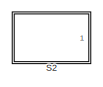
[diagram: root canvas - part 1/4, top left region]
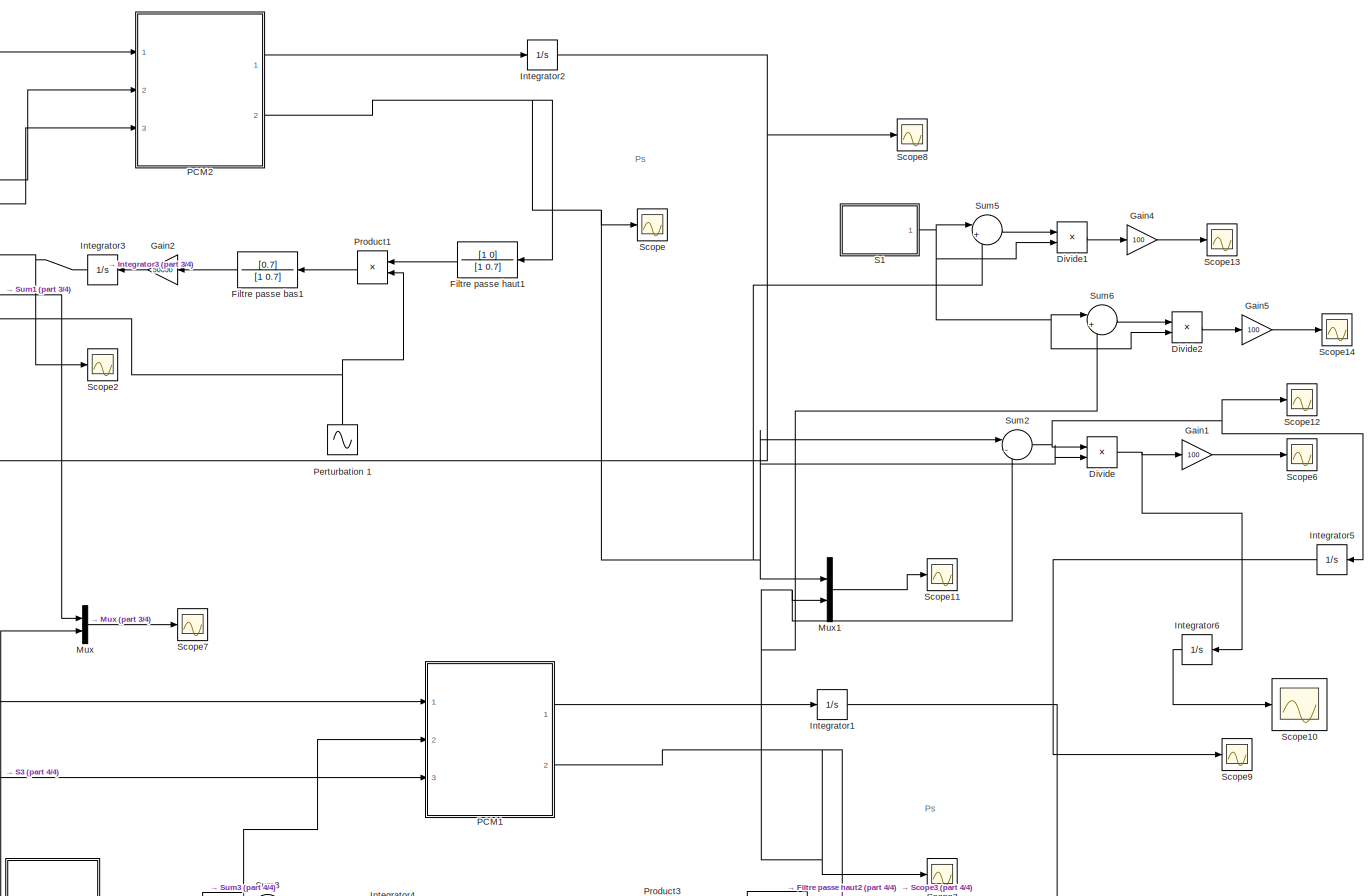
[diagram: root canvas - part 2/4, full width, middle band]
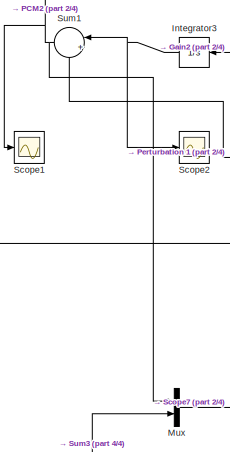
[diagram: root canvas - part 3/4, middle left region]
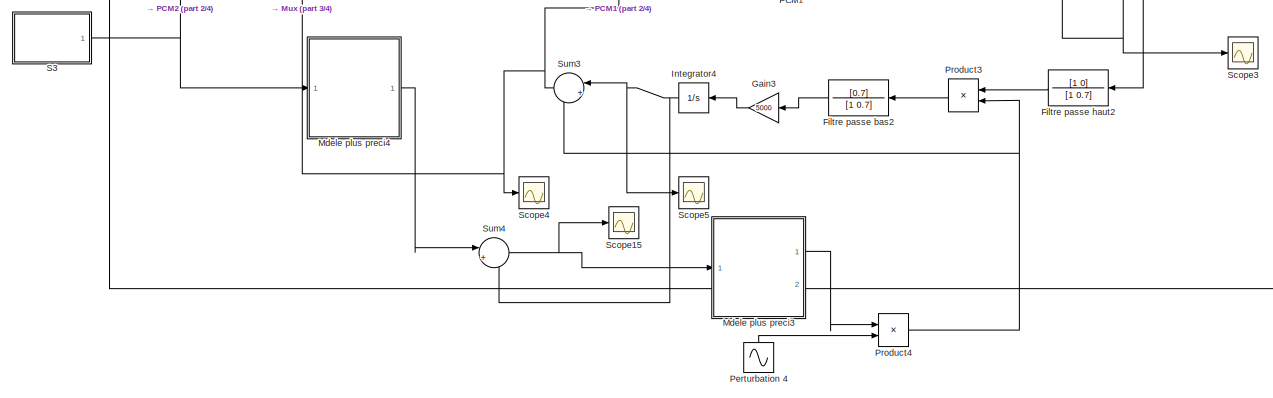
[diagram: root canvas - part 4/4, bottom center region]
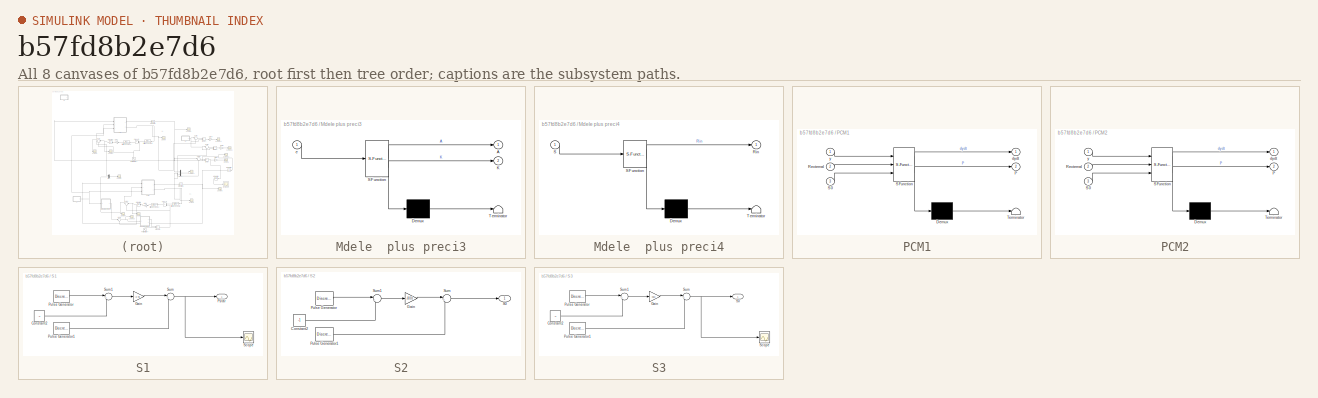
[diagram: thumbnail index - all 8 canvases of the model, root first then tree order]
MODEL slx_b57fd8b2e7d6
KIND model
CONFIG AbsTol = 1e-12
CONFIG FixedStep = 0.0001
CONFIG MaxStep = auto
CONFIG MinStep = auto
CONFIG RelTol = 1e-12
CONFIG SampleTimeConstraint = Unconstrained
CONFIG Solver = ode15s
CONFIG SolverMode = Auto
CONFIG SolverName = ode15s
CONFIG StartTime = 0.0
CONFIG StopTime = tsim
BLOCK [Product] Divide
  InputSameDT = off
  Inputs = */
  OutDataTypeStr = Inherit: Inherit via internal rule
  Ports = [2, 1]
  RndMeth = Floor
  SaturateOnIntegerOverflow = off
BLOCK [Product] Divide1
  InputSameDT = off
  Inputs = */
  OutDataTypeStr = Inherit: Inherit via internal rule
  Ports = [2, 1]
  RndMeth = Floor
  SaturateOnIntegerOverflow = off
BLOCK [Product] Divide2
  InputSameDT = off
  Inputs = */
  OutDataTypeStr = Inherit: Inherit via internal rule
  Ports = [2, 1]
  RndMeth = Floor
  SaturateOnIntegerOverflow = off
BLOCK [TransferFcn] Filtre passe bas1
  Denominator = [1 0.7]
  Numerator = [0.7]
BLOCK [TransferFcn] Filtre passe bas2
  Denominator = [1 0.7]
  Numerator = [0.7]
BLOCK [TransferFcn] Filtre passe haut1
  Denominator = [1 0.7]
  Numerator = [1 0]
BLOCK [TransferFcn] Filtre passe haut2
  Denominator = [1 0.7]
  Numerator = [1 0]
BLOCK [Gain] Gain1
  Gain = 100
  OutDataTypeStr = Inherit: Inherit via internal rule
  ParamDataTypeStr = Inherit: Inherit via internal rule
  SaturateOnIntegerOverflow = off
BLOCK [Gain] Gain2
  Gain = 50000
  OutDataTypeStr = Inherit: Inherit via internal rule
  ParamDataTypeStr = Inherit: Inherit via internal rule
  SaturateOnIntegerOverflow = off
BLOCK [Gain] Gain3
  Gain = 5000
  OutDataTypeStr = Inherit: Inherit via internal rule
  ParamDataTypeStr = Inherit: Inherit via internal rule
  SaturateOnIntegerOverflow = off
BLOCK [Gain] Gain4
  Gain = 100
  OutDataTypeStr = Inherit: Inherit via internal rule
  ParamDataTypeStr = Inherit: Inherit via internal rule
  SaturateOnIntegerOverflow = off
BLOCK [Gain] Gain5
  Gain = 100
  OutDataTypeStr = Inherit: Inherit via internal rule
  ParamDataTypeStr = Inherit: Inherit via internal rule
  SaturateOnIntegerOverflow = off
BLOCK [Integrator] Integrator1
  InitialCondition = [5.726117682433310 0.030299840936202]
  Ports = [1, 1]
BLOCK [Integrator] Integrator2
  InitialCondition = [5.726117682433310 0.030299840936202]
  Ports = [1, 1]
BLOCK [Integrator] Integrator3
  InitialCondition = 157
  Ports = [1, 1]
BLOCK [Integrator] Integrator4
  InitialCondition = 157
  Ports = [1, 1]
BLOCK [Integrator] Integrator5
  Ports = [1, 1]
BLOCK [Integrator] Integrator6
  Ports = [1, 1]
BLOCK [SubSystem] Mdele  plus preci3
  ErrorFcn = Stateflow.Translate.translate
  PermitHierarchicalResolution = ExplicitOnly
  Ports = [1, 2]
  RequestExecContextInheritance = off
  SFBlockType = MATLAB Function
  TreatAsAtomicUnit = on
  Variant = off
BLOCK [Demux] Mdele  plus preci3/ Demux 
  Outputs = 1
  Ports = [1, 1]
BLOCK [S-Function] Mdele  plus preci3/ SFunction 
  EnableBusSupport = on
  FunctionName = sf_sfun
  PortCounts = [1 3]
  Ports = [1, 3]
  SFunctionDeploymentMode = off
  Tag = Stateflow S-Function PCM 3
BLOCK [Terminator] Mdele  plus preci3/ Terminator 
BLOCK [Outport] Mdele  plus preci3/A
  IconDisplay = Port number
BLOCK [Outport] Mdele  plus preci3/K
  IconDisplay = Port number
  Port = 2
BLOCK [Inport] Mdele  plus preci3/e
  IconDisplay = Port number
BLOCK [SubSystem] Mdele  plus preci4
  ErrorFcn = Stateflow.Translate.translate
  PermitHierarchicalResolution = ExplicitOnly
  Ports = [1, 1]
  RequestExecContextInheritance = off
  SFBlockType = MATLAB Function
  TreatAsAtomicUnit = on
  Variant = off
BLOCK [Demux] Mdele  plus preci4/ Demux 
  Outputs = 1
  Ports = [1, 1]
BLOCK [S-Function] Mdele  plus preci4/ SFunction 
  EnableBusSupport = on
  FunctionName = sf_sfun
  PortCounts = [1 2]
  Ports = [1, 2]
  SFunctionDeploymentMode = off
  Tag = Stateflow S-Function PCM 4
BLOCK [Terminator] Mdele  plus preci4/ Terminator 
BLOCK [Outport] Mdele  plus preci4/Rin
  IconDisplay = Port number
BLOCK [Inport] Mdele  plus preci4/S
  IconDisplay = Port number
BLOCK [Mux] Mux
  DisplayOption = bar
  Inputs = 2
  Ports = [2, 1]
BLOCK [Mux] Mux1
  DisplayOption = bar
  Inputs = 2
  Ports = [2, 1]
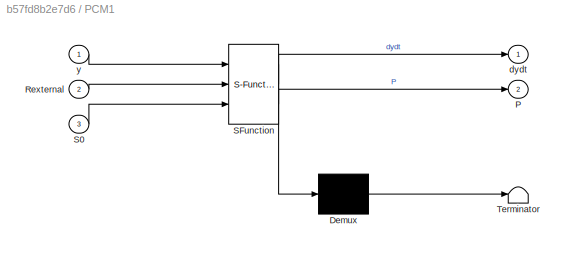
BLOCK [SubSystem] PCM1
  ErrorFcn = Stateflow.Translate.translate
  PermitHierarchicalResolution = ExplicitOnly
  Ports = [3, 2]
  RequestExecContextInheritance = off
  SFBlockType = MATLAB Function
  TreatAsAtomicUnit = on
  Variant = off
BLOCK [Demux] PCM1/ Demux 
  Outputs = 1
  Ports = [1, 1]
BLOCK [S-Function] PCM1/ SFunction 
  EnableBusSupport = on
  FunctionName = sf_sfun
  PortCounts = [3 3]
  Ports = [3, 3]
  SFunctionDeploymentMode = off
  Tag = Stateflow S-Function PCM 6
BLOCK [Terminator] PCM1/ Terminator 
BLOCK [Outport] PCM1/P
  IconDisplay = Port number
  Port = 2
BLOCK [Inport] PCM1/Rexternal
  IconDisplay = Port number
  Port = 2
BLOCK [Inport] PCM1/S0
  IconDisplay = Port number
  Port = 3
BLOCK [Outport] PCM1/dydt
  IconDisplay = Port number
BLOCK [Inport] PCM1/y
  IconDisplay = Port number
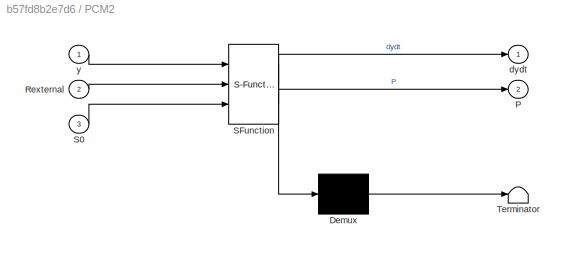
BLOCK [SubSystem] PCM2
  ErrorFcn = Stateflow.Translate.translate
  PermitHierarchicalResolution = ExplicitOnly
  Ports = [3, 2]
  RequestExecContextInheritance = off
  SFBlockType = MATLAB Function
  TreatAsAtomicUnit = on
  Variant = off
BLOCK [Demux] PCM2/ Demux 
  Outputs = 1
  Ports = [1, 1]
BLOCK [S-Function] PCM2/ SFunction 
  EnableBusSupport = on
  FunctionName = sf_sfun
  PortCounts = [3 3]
  Ports = [3, 3]
  SFunctionDeploymentMode = off
  Tag = Stateflow S-Function PCM 5
BLOCK [Terminator] PCM2/ Terminator 
BLOCK [Outport] PCM2/P
  IconDisplay = Port number
  Port = 2
BLOCK [Inport] PCM2/Rexternal
  IconDisplay = Port number
  Port = 2
BLOCK [Inport] PCM2/S0
  IconDisplay = Port number
  Port = 3
BLOCK [Outport] PCM2/dydt
  IconDisplay = Port number
BLOCK [Inport] PCM2/y
  IconDisplay = Port number
BLOCK [Sin] Perturbation 1
  Amplitude = 2
  Frequency = 3.8
  Ports = [0, 1]
  SampleTime = 0
BLOCK [Sin] Perturbation 4
  Frequency = 3.8
  Ports = [0, 1]
  SampleTime = 0
BLOCK [Product] Product1
  InputSameDT = off
  OutDataTypeStr = Inherit: Inherit via internal rule
  Ports = [2, 1]
  SaturateOnIntegerOverflow = off
BLOCK [Product] Product3
  InputSameDT = off
  OutDataTypeStr = Inherit: Inherit via internal rule
  Ports = [2, 1]
  SaturateOnIntegerOverflow = off
BLOCK [Product] Product4
  InputSameDT = off
  OutDataTypeStr = Inherit: Inherit via internal rule
  Ports = [2, 1]
  SaturateOnIntegerOverflow = off
BLOCK [SubSystem] S1
  Ports = [0, 1]
  RequestExecContextInheritance = off
  Variant = off
BLOCK [Constant] S1/Constant2
  Value = -1
BLOCK [Gain] S1/Gain
  Gain = -2.48
  OutDataTypeStr = Inherit: Inherit via internal rule
  ParamDataTypeStr = Inherit: Inherit via internal rule
  SaturateOnIntegerOverflow = off
BLOCK [Outport] S1/Pstar
  IconDisplay = Port number
BLOCK [DiscretePulseGenerator] S1/Pulse Generator
  Period = Per2
  Ports = [0, 1]
  PulseType = Time based
  PulseWidth = 50
BLOCK [DiscretePulseGenerator] S1/Pulse Generator1
  Amplitude = 1.47
  Period = Per2
  Ports = [0, 1]
  PulseType = Time based
  PulseWidth = 50
BLOCK [Scope] S1/Scope
  Ports = [1]
  ScopeSpecificationString = Simulink.scopes.TimeScopeBlockCfg('CurrentConfiguration', extmgr.ConfigurationSet(extmgr.Configuration('Core','General UI',true),extmgr.Configuration('Core','Source UI',true),extmgr.Configuration('Sources','WiredSimulink',true,'DataLoggingVariableName','ScopeData4','DataLoggingLimitDataPoints',true,'DataLoggingSaveFormat','Array','DataLoggingDecimation','1','DataLoggingDecimateData',true),extmgr.C...<+1701ch>
BLOCK [Sum] S1/Sum
  IconShape = round
  InputSameDT = off
  Inputs = |++
  OutDataTypeStr = Inherit: Inherit via internal rule
  Ports = [2, 1]
  SaturateOnIntegerOverflow = off
BLOCK [Sum] S1/Sum1
  IconShape = round
  InputSameDT = off
  Inputs = |++
  OutDataTypeStr = Inherit: Inherit via internal rule
  Ports = [2, 1]
  SaturateOnIntegerOverflow = off
BLOCK [SubSystem] S2
  Ports = [0, 1]
  RequestExecContextInheritance = off
  Variant = off
BLOCK [Constant] S2/Constant2
  Value = -1
BLOCK [Gain] S2/Gain
  Gain = -800
  OutDataTypeStr = Inherit: Inherit via internal rule
  ParamDataTypeStr = Inherit: Inherit via internal rule
  SaturateOnIntegerOverflow = off
BLOCK [DiscretePulseGenerator] S2/Pulse Generator
  Period = 7
  Ports = [0, 1]
  PulseType = Time based
  PulseWidth = 50
BLOCK [DiscretePulseGenerator] S2/Pulse Generator1
  Amplitude = 300
  Period = 7
  Ports = [0, 1]
  PulseType = Time based
  PulseWidth = 50
BLOCK [Outport] S2/S0
  IconDisplay = Port number
BLOCK [Sum] S2/Sum
  IconShape = round
  InputSameDT = off
  Inputs = |++
  OutDataTypeStr = Inherit: Inherit via internal rule
  Ports = [2, 1]
  SaturateOnIntegerOverflow = off
BLOCK [Sum] S2/Sum1
  IconShape = round
  InputSameDT = off
  Inputs = |++
  OutDataTypeStr = Inherit: Inherit via internal rule
  Ports = [2, 1]
  SaturateOnIntegerOverflow = off
BLOCK [SubSystem] S3
  Ports = [0, 1]
  RequestExecContextInheritance = off
  Variant = off
BLOCK [Constant] S3/Constant2
  Value = -1
BLOCK [Gain] S3/Gain
  Gain = -850
  OutDataTypeStr = Inherit: Inherit via internal rule
  ParamDataTypeStr = Inherit: Inherit via internal rule
  SaturateOnIntegerOverflow = off
BLOCK [DiscretePulseGenerator] S3/Pulse Generator
  Period = Per2
  Ports = [0, 1]
  PulseType = Time based
  PulseWidth = 50
BLOCK [DiscretePulseGenerator] S3/Pulse Generator1
  Amplitude = 350
  Period = Per2
  Ports = [0, 1]
  PulseType = Time based
  PulseWidth = 50
BLOCK [Outport] S3/S0
  IconDisplay = Port number
BLOCK [Scope] S3/Scope
  Ports = [1]
  ScopeSpecificationString = Simulink.scopes.TimeScopeBlockCfg('CurrentConfiguration', extmgr.ConfigurationSet(extmgr.Configuration('Core','General UI',true),extmgr.Configuration('Core','Source UI',true),extmgr.Configuration('Sources','WiredSimulink',true,'DataLoggingVariableName','ScopeData4','DataLoggingLimitDataPoints',true,'DataLoggingSaveFormat','Array','DataLoggingDecimation','1','DataLoggingDecimateData',true),extmgr.C...<+1701ch>
BLOCK [Sum] S3/Sum
  IconShape = round
  InputSameDT = off
  Inputs = |++
  OutDataTypeStr = Inherit: Inherit via internal rule
  Ports = [2, 1]
  SaturateOnIntegerOverflow = off
BLOCK [Sum] S3/Sum1
  IconShape = round
  InputSameDT = off
  Inputs = |++
  OutDataTypeStr = Inherit: Inherit via internal rule
  Ports = [2, 1]
  SaturateOnIntegerOverflow = off
BLOCK [Scope] Scope
  Ports = [1]
  ScopeSpecificationString = Simulink.scopes.TimeScopeBlockCfg('CurrentConfiguration', extmgr.ConfigurationSet(extmgr.Configuration('Core','General UI',true),extmgr.Configuration('Core','Source UI',true),extmgr.Configuration('Sources','WiredSimulink',true,'DataLogging',true,'DataLoggingSaveFormat','Array','DataLoggingDecimation','1','DataLoggingDecimateData',true),extmgr.Configuration('Visuals','Time Domain',true,'SerializedD...<+1655ch>
BLOCK [Scope] Scope1
  Ports = [1]
  ScopeSpecificationString = C++SS(StrPVP('Location','[11, 60, 1291, 995]'),StrPVP('Open','off'),MxPVP('AxesTitles',24,'struct(''axes1'',''%<SignalLabel>'')'),MxPVP('ScopeGraphics',28,'struct(''FigureColor'',''[0.501960784313725 0.501960784313725 0.501960784313725]'',''AxesColor'',''[0 0 0]'',''AxesTickColor'',''[1 1 1]'',''LineColors'',''[1 1 0;1 0 1;0 1 1;1 0 0;0 1 0;0 0 1]'',''LineStyles'',''-|-|-|-|-|-'',''LineWidths'',''...<+346ch>
BLOCK [Scope] Scope10
  Ports = [1]
  ScopeSpecificationString = Simulink.scopes.TimeScopeBlockCfg('CurrentConfiguration', extmgr.ConfigurationSet(extmgr.Configuration('Core','General UI',true),extmgr.Configuration('Core','Source UI',true),extmgr.Configuration('Sources','WiredSimulink',true,'DataLogging',true,'DataLoggingVariableName','PourcInc','DataLoggingSaveFormat','Array','DataLoggingDecimation','1','DataLoggingDecimateData',true),extmgr.Configuration('Vis...<+1718ch>
BLOCK [Scope] Scope11
  Ports = [1]
  ScopeSpecificationString = Simulink.scopes.TimeScopeBlockCfg('CurrentConfiguration', extmgr.ConfigurationSet(extmgr.Configuration('Core','General UI',true),extmgr.Configuration('Core','Source UI',true),extmgr.Configuration('Sources','WiredSimulink',true,'DataLogging',true,'DataLoggingVariableName','ScopeData11','DataLoggingSaveFormat','Array','DataLoggingDecimation','1','DataLoggingDecimateData',true),extmgr.Configuration('...<+1778ch>
BLOCK [Scope] Scope12
  Ports = [1]
  ScopeSpecificationString = Simulink.scopes.TimeScopeBlockCfg('CurrentConfiguration', extmgr.ConfigurationSet(extmgr.Configuration('Core','General UI',true),extmgr.Configuration('Core','Source UI',true),extmgr.Configuration('Sources','WiredSimulink',true,'DataLogging',true,'DataLoggingVariableName','ScopeData12','DataLoggingSaveFormat','Array','DataLoggingDecimation','1','DataLoggingDecimateData',true),extmgr.Configuration('...<+1696ch>
BLOCK [Scope] Scope13
  Ports = [1]
  ScopeSpecificationString = Simulink.scopes.TimeScopeBlockCfg('CurrentConfiguration', extmgr.ConfigurationSet(extmgr.Configuration('Core','General UI',true),extmgr.Configuration('Core','Source UI',true),extmgr.Configuration('Sources','WiredSimulink',true,'DataLogging',true,'DataLoggingVariableName','PerteESC','DataLoggingSaveFormat','Array','DataLoggingDecimation','1','DataLoggingDecimateData',true),extmgr.Configuration('Vis...<+1698ch>
BLOCK [Scope] Scope14
  Ports = [1]
  ScopeSpecificationString = Simulink.scopes.TimeScopeBlockCfg('CurrentConfiguration', extmgr.ConfigurationSet(extmgr.Configuration('Core','General UI',true),extmgr.Configuration('Core','Source UI',true),extmgr.Configuration('Sources','WiredSimulink',true,'DataLogging',true,'DataLoggingVariableName','PerteAdapt','DataLoggingSaveFormat','Array','DataLoggingDecimation','1','DataLoggingDecimateData',true),extmgr.Configuration('V...<+1701ch>
BLOCK [Scope] Scope15
  Ports = [1]
  ScopeSpecificationString = C++SS(StrPVP('Location','[11, 62, 1291, 995]'),StrPVP('Open','off'),MxPVP('AxesTitles',24,'struct(''axes1'',''%<SignalLabel>'')'),MxPVP('ScopeGraphics',28,'struct(''FigureColor'',''[0.501960784313725 0.501960784313725 0.501960784313725]'',''AxesColor'',''[0 0 0]'',''AxesTickColor'',''[1 1 1]'',''LineColors'',''[1 1 0;1 0 1;0 1 1;1 0 0;0 1 0;0 0 1]'',''LineStyles'',''-|-|-|-|-|-'',''LineWidths'',''...<+348ch>
BLOCK [Scope] Scope2
  Ports = [1]
  ScopeSpecificationString = C++SS(StrPVP('Location','[11, 60, 1291, 995]'),StrPVP('Open','off'),MxPVP('AxesTitles',24,'struct(''axes1'',''%<SignalLabel>'')'),MxPVP('ScopeGraphics',28,'struct(''FigureColor'',''[0.501960784313725 0.501960784313725 0.501960784313725]'',''AxesColor'',''[0 0 0]'',''AxesTickColor'',''[1 1 1]'',''LineColors'',''[1 1 0;1 0 1;0 1 1;1 0 0;0 1 0;0 0 1]'',''LineStyles'',''-|-|-|-|-|-'',''LineWidths'',''...<+352ch>
BLOCK [Scope] Scope3
  Ports = [1]
  ScopeSpecificationString = Simulink.scopes.TimeScopeBlockCfg('CurrentConfiguration', extmgr.ConfigurationSet(extmgr.Configuration('Core','General UI',true),extmgr.Configuration('Core','Source UI',true),extmgr.Configuration('Sources','WiredSimulink',true,'DataLogging',true,'DataLoggingVariableName','ScopeData3','DataLoggingSaveFormat','Array','DataLoggingDecimation','1','DataLoggingDecimateData',true),extmgr.Configuration('V...<+1688ch>
BLOCK [Scope] Scope4
  Ports = [1]
  ScopeSpecificationString = C++SS(StrPVP('Location','[11, 60, 1291, 995]'),StrPVP('Open','off'),MxPVP('AxesTitles',24,'struct(''axes1'',''%<SignalLabel>'')'),MxPVP('ScopeGraphics',28,'struct(''FigureColor'',''[0.501960784313725 0.501960784313725 0.501960784313725]'',''AxesColor'',''[0 0 0]'',''AxesTickColor'',''[1 1 1]'',''LineColors'',''[1 1 0;1 0 1;0 1 1;1 0 0;0 1 0;0 0 1]'',''LineStyles'',''-|-|-|-|-|-'',''LineWidths'',''...<+347ch>
BLOCK [Scope] Scope5
  Ports = [1]
  ScopeSpecificationString = Simulink.scopes.TimeScopeBlockCfg('CurrentConfiguration', extmgr.ConfigurationSet(extmgr.Configuration('Core','General UI',true),extmgr.Configuration('Core','Source UI',true),extmgr.Configuration('Sources','WiredSimulink',true,'DataLogging',true,'DataLoggingVariableName','ScopeData5','DataLoggingSaveFormat','Array','DataLoggingDecimation','1','DataLoggingDecimateData',true),extmgr.Configuration('V...<+1711ch>
BLOCK [Scope] Scope6
  Ports = [1]
  ScopeSpecificationString = Simulink.scopes.TimeScopeBlockCfg('CurrentConfiguration', extmgr.ConfigurationSet(extmgr.Configuration('Core','General UI',true),extmgr.Configuration('Core','Source UI',true),extmgr.Configuration('Sources','WiredSimulink',true,'DataLogging',true,'DataLoggingVariableName','ScopeData6','DataLoggingSaveFormat','Array','DataLoggingDecimation','1','DataLoggingDecimateData',true),extmgr.Configuration('V...<+1719ch>
BLOCK [Scope] Scope7
  Ports = [1]
  ScopeSpecificationString = Simulink.scopes.TimeScopeBlockCfg('CurrentConfiguration', extmgr.ConfigurationSet(extmgr.Configuration('Core','General UI',true),extmgr.Configuration('Core','Source UI',true),extmgr.Configuration('Sources','WiredSimulink',true,'DataLogging',true,'DataLoggingVariableName','ScopeData7','DataLoggingSaveFormat','Array','DataLoggingDecimation','1','DataLoggingDecimateData',true),extmgr.Configuration('V...<+1722ch>
BLOCK [Scope] Scope8
  Ports = [1]
  ScopeSpecificationString = Simulink.scopes.TimeScopeBlockCfg('CurrentConfiguration', extmgr.ConfigurationSet(extmgr.Configuration('Core','General UI',true),extmgr.Configuration('Core','Source UI',true),extmgr.Configuration('Sources','WiredSimulink',true,'DataLogging',true,'DataLoggingVariableName','ScopeData8','DataLoggingSaveFormat','Array','DataLoggingDecimation','1','DataLoggingDecimateData',true),extmgr.Configuration('V...<+1725ch>
BLOCK [Scope] Scope9
  Ports = [1]
  ScopeSpecificationString = Simulink.scopes.TimeScopeBlockCfg('CurrentConfiguration', extmgr.ConfigurationSet(extmgr.Configuration('Core','General UI',true),extmgr.Configuration('Core','Source UI',true),extmgr.Configuration('Sources','WiredSimulink',true,'DataLogging',true,'DataLoggingVariableName','DeltaPInt','DataLoggingSaveFormat','Array','DataLoggingDecimation','1','DataLoggingDecimateData',true),extmgr.Configuration('Vi...<+1687ch>
BLOCK [Sum] Sum1
  IconShape = round
  InputSameDT = off
  Inputs = |++
  OutDataTypeStr = Inherit: Inherit via internal rule
  Ports = [2, 1]
  SaturateOnIntegerOverflow = off
BLOCK [Sum] Sum2
  IconShape = round
  InputSameDT = off
  Inputs = |-+
  OutDataTypeStr = Inherit: Inherit via internal rule
  Ports = [2, 1]
  SaturateOnIntegerOverflow = off
BLOCK [Sum] Sum3
  IconShape = round
  InputSameDT = off
  Inputs = |++
  OutDataTypeStr = Inherit: Inherit via internal rule
  Ports = [2, 1]
  SaturateOnIntegerOverflow = off
BLOCK [Sum] Sum4
  IconShape = round
  InputSameDT = off
  Inputs = |+-
  OutDataTypeStr = Inherit: Inherit via internal rule
  Ports = [2, 1]
  SaturateOnIntegerOverflow = off
BLOCK [Sum] Sum5
  IconShape = round
  InputSameDT = off
  Inputs = |+-
  OutDataTypeStr = Inherit: Inherit via internal rule
  Ports = [2, 1]
  SaturateOnIntegerOverflow = off
BLOCK [Sum] Sum6
  IconShape = round
  InputSameDT = off
  Inputs = |+-
  OutDataTypeStr = Inherit: Inherit via internal rule
  Ports = [2, 1]
  SaturateOnIntegerOverflow = off
ANNOTATION (root): Ps
LINE Divide1:1 -> Gain4:1
LINE Divide2:1 -> Gain5:1
NET Divide:1 -> Gain1:1, Integrator6:1
LINE Filtre passe bas1:1 -> Gain2:1
LINE Filtre passe bas2:1 -> Gain3:1
LINE Filtre passe haut1:1 -> Product1:1
LINE Filtre passe haut2:1 -> Product3:1
LINE Gain1:1 -> Scope6:1
LINE Gain2:1 -> Integrator3:1
LINE Gain3:1 -> Integrator4:1
LINE Gain4:1 -> Scope13:1
LINE Gain5:1 -> Scope14:1
LINE Integrator1:1 -> PCM1:1
NET Integrator2:1 -> PCM2:1, Scope8:1
NET Integrator3:1 -> Scope2:1, Sum1:1
NET Integrator4:1 -> Scope5:1, Sum3:1, Sum4:2
LINE Integrator5:1 -> Scope9:1
LINE Integrator6:1 -> Scope10:1
LINE Mdele  plus preci3:1 -> Product4:1
LINE Mdele  plus preci4:1 -> Sum4:1
LINE Mux1:1 -> Scope11:1
LINE Mux:1 -> Scope7:1
LINE PCM1:1 -> Integrator1:1
NET PCM1:2 -> Filtre passe haut2:1, Mux1:2, Scope3:1, Sum2:2, Sum6:2
LINE PCM2:1 -> Integrator2:1
NET PCM2:2 -> Divide:2, Filtre passe haut1:1, Mux1:1, Scope:1, Sum2:1, Sum5:2
NET Perturbation 1:1 -> Product1:2, Sum1:2
LINE Perturbation 4:1 -> Product4:2
LINE Product1:1 -> Filtre passe bas1:1
LINE Product3:1 -> Filtre passe bas2:1
NET Product4:1 -> Product3:2, Sum3:2
LINE S1/Constant2:1 -> S1/Sum1:2
LINE S1/Gain:1 -> S1/Sum:1
LINE S1/Pulse Generator1:1 -> S1/Sum:2
LINE S1/Pulse Generator:1 -> S1/Sum1:1
LINE S1/Sum1:1 -> S1/Gain:1
NET S1/Sum:1 -> S1/Pstar:1, S1/Scope:1
NET S1:1 -> Divide1:2, Divide2:2, Sum5:1, Sum6:1
LINE S2/Constant2:1 -> S2/Sum1:2
LINE S2/Gain:1 -> S2/Sum:1
LINE S2/Pulse Generator1:1 -> S2/Sum:2
LINE S2/Pulse Generator:1 -> S2/Sum1:1
LINE S2/Sum1:1 -> S2/Gain:1
LINE S2/Sum:1 -> S2/S0:1
LINE S3/Constant2:1 -> S3/Sum1:2
LINE S3/Gain:1 -> S3/Sum:1
LINE S3/Pulse Generator1:1 -> S3/Sum:2
LINE S3/Pulse Generator:1 -> S3/Sum1:1
LINE S3/Sum1:1 -> S3/Gain:1
NET S3/Sum:1 -> S3/S0:1, S3/Scope:1
NET S3:1 -> Mdele  plus preci4:1, PCM1:3, PCM2:3
NET Sum1:1 -> Mux:1, PCM2:2, Scope1:1
NET Sum2:1 -> Divide:1, Integrator5:1, Scope12:1
NET Sum3:1 -> Mux:2, PCM1:2, Scope4:1
NET Sum4:1 -> Mdele  plus preci3:1, Scope15:1
LINE Sum5:1 -> Divide1:1
LINE Sum6:1 -> Divide2:1
note: NET lines group one-source signal fan-out (src -> all destinations, sorted); 1:1 wires keep LINE
CHART Mdele  plus preci3 states=1 transitions=1
  STATE_LABEL 'eML_blk_kernel()'
  STATE_LABEL 'SCRIPT:\nfunction [A,K] = fcn(e)\n\n\nif abs(e)>10\n    A=20;\n    K=5000;\n\nelse\n    A=2;\n  K=50000;\nend'
CHART Mdele  plus preci4 states=1 transitions=1
  STATE_LABEL 'eML_blk_kernel()'
  STATE_LABEL 'SCRIPT:\nfunction Rin = fcn(S)\n\nW1= [-3.3685    2.5640    0.3670   -4.7976   -0.8754   -1.3498    0.5468    0.4064    0.6063    2.9323; -16.9080   -2.1163   -0.3142    6.2725    0.7329    1.0987   -0.4653   -0.3477   -0.5147   -2.6463];\nW2=[ 9.8215\n    4.4782\n   -0.0111\n    0.1037\n   -0.4259\n   -0.2185\n   -0.2740\n    0.1494\n    0.1140\n    0.1634\n   -0.4299];\na=.5;%pente de la sigmoide\n\nin=0.001*S;\n...<+133ch>'
CHART PCM2 states=1 transitions=1
  STATE_LABEL 'eML_blk_kernel()'
  STATE_LABEL 'SCRIPT:\n\nfunction [dydt,P]=fcnn(y,Rexternal,S0)\n\nyield = 22.753;      %constant [ ] OK\nF=96485;                 %Faraday constant [A.s/mol] OK\nEmin= 0.01;             % Minimum cell voltage [V] OK\nqmax1=2.1210*4;         %max S consumption rate [1/day] OK\nqmax2=2.05*4;                %max S consumption rate [1/day] OK\nKs1=20;                   %constant Substrate/Electrogens  [mg/L] OK\nKs2=80;    ...<+3107ch>'
CHART PCM1 states=1 transitions=1
  STATE_LABEL 'eML_blk_kernel()'
  STATE_LABEL 'SCRIPT:\n\nfunction [dydt,P]=fcnn(y,Rexternal,S0)\n\nyield = 22.753;      %constant [ ] OK\nF=96485;                 %Faraday constant [A.s/mol] OK\nEmin= 0.01;             % Minimum cell voltage [V] OK\nqmax1=2.1210*4;         %max S consumption rate [1/day] OK\nqmax2=2.05*4;                %max S consumption rate [1/day] OK\nKs1=20;                   %constant Substrate/Electrogens  [mg/L] OK\nKs2=80;    ...<+3103ch>'
